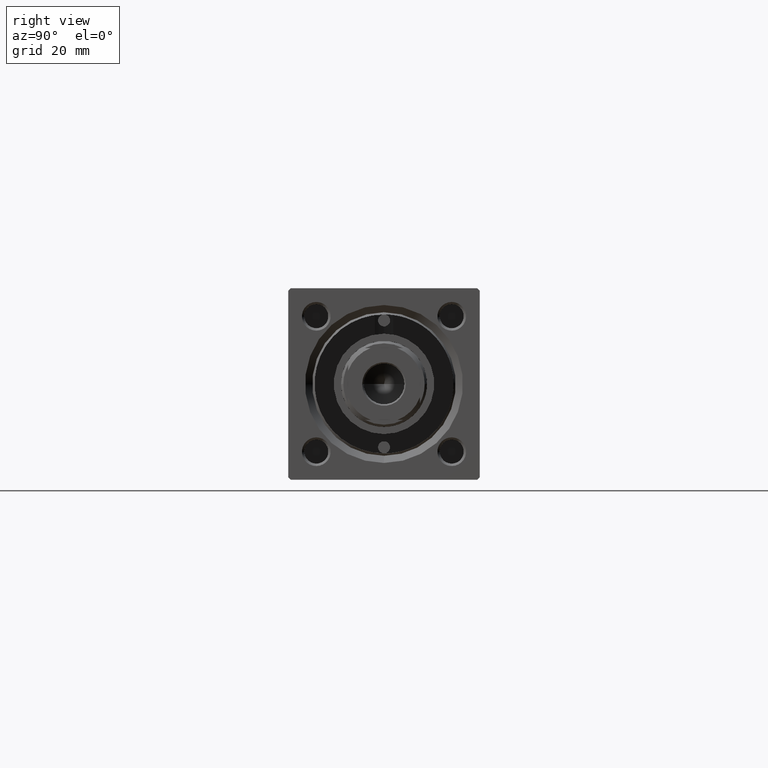
[diagram: clean part render]
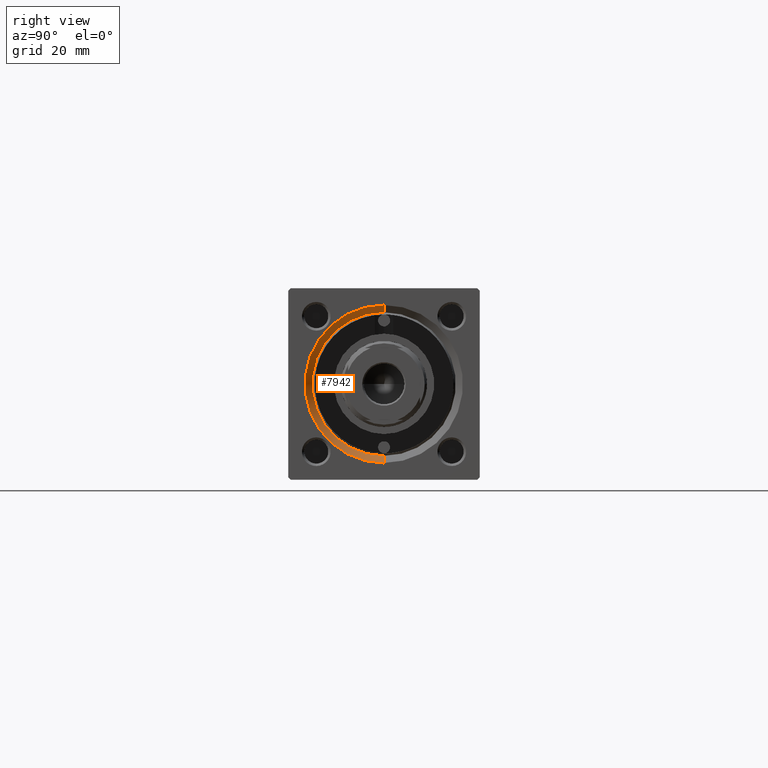
[diagram: same view with one face highlighted and labeled with its STEP entity id]
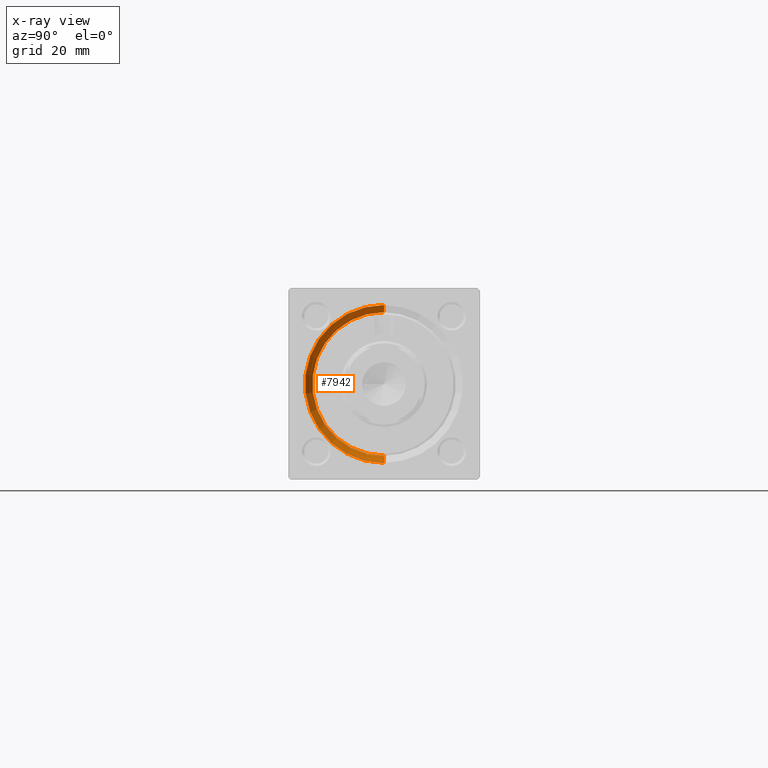
[diagram: x-ray of the same camera — body ghosted, the highlighted face saturated]
A machine part, right view. The second image highlights one B-rep face of the part: STEP entity #7942.
The next image is the same camera in x-ray: the body ghosted, the highlighted face saturated — about 0% of this face is hidden behind the body in this view.
In plain terms, the highlighted conical surface has half-angle 45 deg.
Its self-contained STEP definition (entity closure, byte-faithful):
#39 = VECTOR ( 'NONE', #39167, 1000.000000000000114 ) ;
#1585 = LINE ( 'NONE', #12020, #23670 ) ;
#4488 = VERTEX_POINT ( 'NONE', #33012 ) ;
#4762 = ORIENTED_EDGE ( 'NONE', *, *, #47040, .F. ) ;
#6542 = VERTEX_POINT ( 'NONE', #16707 ) ;
#6871 = AXIS2_PLACEMENT_3D ( 'NONE', #37658, #22440, #13789 ) ;
#7942 = ADVANCED_FACE ( 'NONE', ( #23085 ), #27691, .F. ) ;
#9345 = DIRECTION ( 'NONE',  ( 0.000000000000000000, 0.000000000000000000, 1.000000000000000000 ) ) ;
#9588 = EDGE_CURVE ( 'NONE', #4488, #19311, #1585, .T. ) ;
#12020 = CARTESIAN_POINT ( 'NONE',  ( 117.5000000000000000, 1.836970198721029589E-15, 15.00000000000000000 ) ) ;
#12135 = DIRECTION ( 'NONE',  ( 1.000000000000000000, 0.000000000000000000, 0.000000000000000000 ) ) ;
#12987 = CARTESIAN_POINT ( 'NONE',  ( 117.5000000000000000, 0.000000000000000000, -15.00000000000000000 ) ) ;
#13071 = CIRCLE ( 'NONE', #41447, 16.50000000000001421 ) ;
#13164 = CARTESIAN_POINT ( 'NONE',  ( 119.0000000000000142, 0.000000000000000000, 0.000000000000000000 ) ) ;
#13591 = EDGE_LOOP ( 'NONE', ( #35848, #14105, #26337, #4762 ) ) ;
#13789 = DIRECTION ( 'NONE',  ( 0.000000000000000000, 0.000000000000000000, 1.000000000000000000 ) ) ;
#14105 = ORIENTED_EDGE ( 'NONE', *, *, #9588, .T. ) ;
#16325 = LINE ( 'NONE', #12987, #39 ) ;
#16707 = CARTESIAN_POINT ( 'NONE',  ( 119.0000000000000142, 0.000000000000000000, -16.50000000000001421 ) ) ;
#17937 = CARTESIAN_POINT ( 'NONE',  ( 117.5000000000000000, 0.000000000000000000, -15.00000000000000000 ) ) ;
#19311 = VERTEX_POINT ( 'NONE', #41041 ) ;
#22440 = DIRECTION ( 'NONE',  ( 1.000000000000000000, 0.000000000000000000, 0.000000000000000000 ) ) ;
#23064 = VERTEX_POINT ( 'NONE', #17937 ) ;
#23085 = FACE_OUTER_BOUND ( 'NONE', #13591, .T. ) ;
#23670 = VECTOR ( 'NONE', #31330, 1000.000000000000114 ) ;
#23919 = DIRECTION ( 'NONE',  ( -1.000000000000000000, -0.000000000000000000, -0.000000000000000000 ) ) ;
#24396 = EDGE_CURVE ( 'NONE', #6542, #19311, #13071, .T. ) ;
#26337 = ORIENTED_EDGE ( 'NONE', *, *, #24396, .F. ) ;
#27634 = DIRECTION ( 'NONE',  ( 0.000000000000000000, 0.000000000000000000, -1.000000000000000000 ) ) ;
#27691 = CONICAL_SURFACE ( 'NONE', #38235, 15.00000000000000000, 0.7853981633974482790 ) ;
#31194 = CARTESIAN_POINT ( 'NONE',  ( 117.5000000000000000, 0.000000000000000000, 0.000000000000000000 ) ) ;
#31330 = DIRECTION ( 'NONE',  ( 0.7071067811865474617, 8.659560562354932858E-17, 0.7071067811865474617 ) ) ;
#33012 = CARTESIAN_POINT ( 'NONE',  ( 117.5000000000000000, 1.836970198721029589E-15, 15.00000000000000000 ) ) ;
#35848 = ORIENTED_EDGE ( 'NONE', *, *, #36460, .F. ) ;
#36460 = EDGE_CURVE ( 'NONE', #4488, #23064, #40103, .T. ) ;
#37658 = CARTESIAN_POINT ( 'NONE',  ( 117.5000000000000000, 0.000000000000000000, 0.000000000000000000 ) ) ;
#38235 = AXIS2_PLACEMENT_3D ( 'NONE', #31194, #12135, #27634 ) ;
#39167 = DIRECTION ( 'NONE',  ( 0.7071067811865474617, 0.000000000000000000, -0.7071067811865474617 ) ) ;
#40103 = CIRCLE ( 'NONE', #6871, 15.00000000000000000 ) ;
#41041 = CARTESIAN_POINT ( 'NONE',  ( 119.0000000000000142, 2.020667218593134678E-15, 16.50000000000001421 ) ) ;
#41447 = AXIS2_PLACEMENT_3D ( 'NONE', #13164, #23919, #9345 ) ;
#47040 = EDGE_CURVE ( 'NONE', #23064, #6542, #16325, .T. ) ;